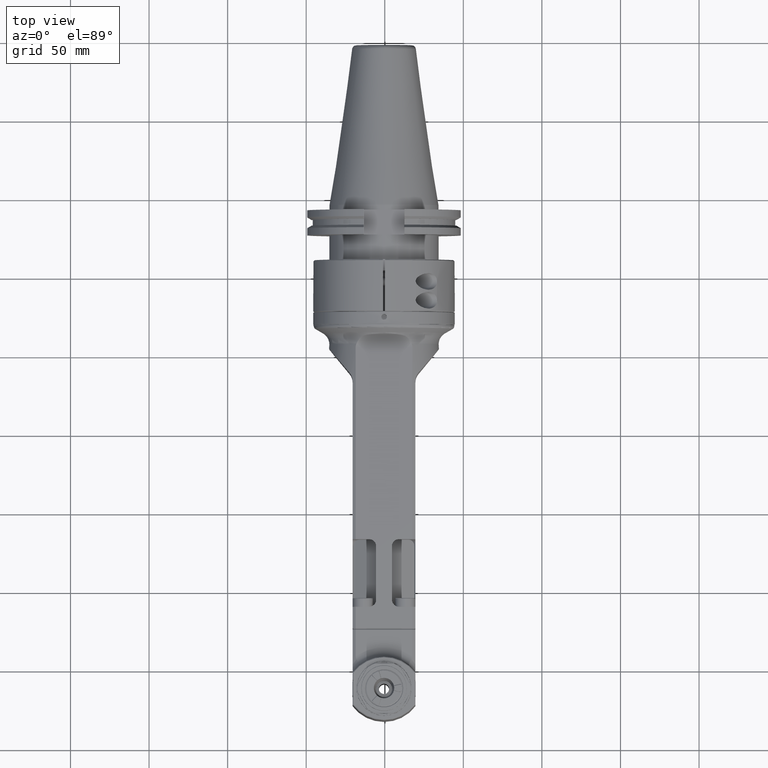
[diagram: clean part render]
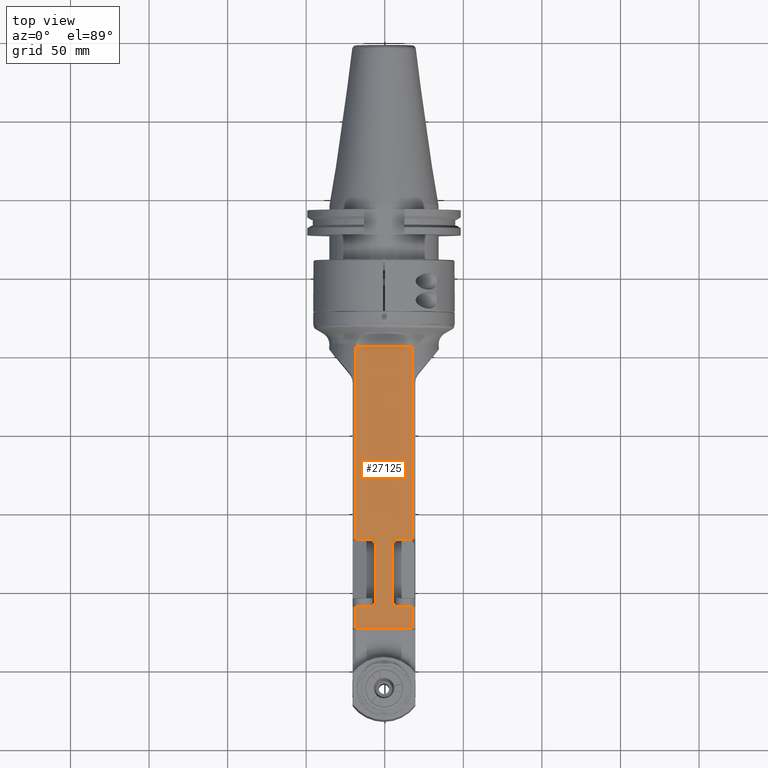
[diagram: same view with one face highlighted and labeled with its STEP entity id]
A machine part, top view. The second image highlights one B-rep face of the part: STEP entity #27125.
In plain terms, the highlighted planar face has unit normal (-0, 0, -1).
Its self-contained STEP definition (entity closure, byte-faithful):
#596=ELLIPSE('',#29265,4.61304858991232,4.);
#597=ELLIPSE('',#29267,4.61304858991232,4.);
#598=ELLIPSE('',#29268,4.61304858991232,4.);
#599=ELLIPSE('',#29269,4.61304858991232,4.);
#2744=FACE_OUTER_BOUND('',#4363,.T.);
#4363=EDGE_LOOP('',(#20313,#20314,#20315,#20316,#20317,#20318,#20319,#20320,
#20321,#20322,#20323,#20324,#20325,#20326,#20327,#20328));
#6253=LINE('',#43466,#8888);
#6254=LINE('',#43502,#8889);
#6261=LINE('',#43658,#8896);
#6268=LINE('',#43685,#8903);
#6269=LINE('',#43687,#8904);
#6270=LINE('',#43689,#8905);
#6271=LINE('',#43693,#8906);
#6272=LINE('',#43697,#8907);
#6273=LINE('',#43698,#8908);
#6274=LINE('',#43700,#8909);
#6275=LINE('',#43704,#8910);
#6276=LINE('',#43705,#8911);
#8888=VECTOR('',#33673,36.05551275464);
#8889=VECTOR('',#33678,122.4387861803);
#8896=VECTOR('',#33691,8.289917782736);
#8903=VECTOR('',#33718,36.05551196458);
#8904=VECTOR('',#33719,13.5000014978301);
#8905=VECTOR('',#33720,8.289917782736);
#8906=VECTOR('',#33723,35.);
#8907=VECTOR('',#33726,8.289917782736);
#8908=VECTOR('',#33727,122.4387861803);
#8909=VECTOR('',#33728,35.);
#8910=VECTOR('',#33731,8.289917782736);
#8911=VECTOR('',#33732,13.5000013643601);
#11676=VERTEX_POINT('',#43433);
#11677=VERTEX_POINT('',#43465);
#11678=VERTEX_POINT('',#43499);
#11690=VERTEX_POINT('',#43656);
#11698=VERTEX_POINT('',#43679);
#11699=VERTEX_POINT('',#43683);
#11700=VERTEX_POINT('',#43684);
#11701=VERTEX_POINT('',#43686);
#11702=VERTEX_POINT('',#43688);
#11703=VERTEX_POINT('',#43690);
#11704=VERTEX_POINT('',#43692);
#11705=VERTEX_POINT('',#43694);
#11706=VERTEX_POINT('',#43696);
#11707=VERTEX_POINT('',#43699);
#11708=VERTEX_POINT('',#43701);
#11709=VERTEX_POINT('',#43703);
#14822=EDGE_CURVE('',#11677,#11676,#6253,.T.);
#14825=EDGE_CURVE('',#11676,#11678,#6254,.T.);
#14837=EDGE_CURVE('',#11678,#11690,#6261,.T.);
#14849=EDGE_CURVE('',#11690,#11698,#596,.T.);
#14850=EDGE_CURVE('',#11699,#11700,#6268,.T.);
#14851=EDGE_CURVE('',#11701,#11699,#6269,.T.);
#14852=EDGE_CURVE('',#11701,#11702,#6270,.T.);
#14853=EDGE_CURVE('',#11702,#11703,#597,.T.);
#14854=EDGE_CURVE('',#11704,#11703,#6271,.T.);
#14855=EDGE_CURVE('',#11704,#11705,#598,.T.);
#14856=EDGE_CURVE('',#11706,#11705,#6272,.T.);
#14857=EDGE_CURVE('',#11677,#11706,#6273,.T.);
#14858=EDGE_CURVE('',#11698,#11707,#6274,.T.);
#14859=EDGE_CURVE('',#11707,#11708,#599,.T.);
#14860=EDGE_CURVE('',#11709,#11708,#6275,.T.);
#14861=EDGE_CURVE('',#11709,#11700,#6276,.T.);
#20313=ORIENTED_EDGE('',*,*,#14850,.F.);
#20314=ORIENTED_EDGE('',*,*,#14851,.F.);
#20315=ORIENTED_EDGE('',*,*,#14852,.T.);
#20316=ORIENTED_EDGE('',*,*,#14853,.T.);
#20317=ORIENTED_EDGE('',*,*,#14854,.F.);
#20318=ORIENTED_EDGE('',*,*,#14855,.T.);
#20319=ORIENTED_EDGE('',*,*,#14856,.F.);
#20320=ORIENTED_EDGE('',*,*,#14857,.F.);
#20321=ORIENTED_EDGE('',*,*,#14822,.T.);
#20322=ORIENTED_EDGE('',*,*,#14825,.T.);
#20323=ORIENTED_EDGE('',*,*,#14837,.T.);
#20324=ORIENTED_EDGE('',*,*,#14849,.T.);
#20325=ORIENTED_EDGE('',*,*,#14858,.T.);
#20326=ORIENTED_EDGE('',*,*,#14859,.T.);
#20327=ORIENTED_EDGE('',*,*,#14860,.F.);
#20328=ORIENTED_EDGE('',*,*,#14861,.T.);
#25919=PLANE('',#29266);
#27125=ADVANCED_FACE('',(#2744),#25919,.F.);
#29265=AXIS2_PLACEMENT_3D('',#43681,#33714,#33715);
#29266=AXIS2_PLACEMENT_3D('',#43682,#33716,#33717);
#29267=AXIS2_PLACEMENT_3D('',#43691,#33721,#33722);
#29268=AXIS2_PLACEMENT_3D('',#43695,#33724,#33725);
#29269=AXIS2_PLACEMENT_3D('',#43702,#33729,#33730);
#33673=DIRECTION('',(0.,0.,1.));
#33678=DIRECTION('',(0.,1.,0.));
#33691=DIRECTION('',(0.,0.,-1.));
#33714=DIRECTION('center_axis',(1.,0.,0.));
#33715=DIRECTION('ref_axis',(0.,0.,-1.));
#33716=DIRECTION('center_axis',(1.,0.,0.));
#33717=DIRECTION('ref_axis',(0.,1.,0.));
#33718=DIRECTION('',(-3.704707661104E-9,-3.7017696564E-9,1.));
#33719=DIRECTION('',(1.11038195773499E-7,0.999999999999993,3.06258335467098E-8));
#33720=DIRECTION('',(0.,0.,1.));
#33721=DIRECTION('center_axis',(1.,0.,0.));
#33722=DIRECTION('ref_axis',(0.,0.,1.));
#33723=DIRECTION('',(0.,1.,0.));
#33724=DIRECTION('center_axis',(1.,0.,0.));
#33725=DIRECTION('ref_axis',(0.,0.,1.));
#33726=DIRECTION('',(0.,0.,1.));
#33727=DIRECTION('',(0.,1.,0.));
#33728=DIRECTION('',(0.,1.,0.));
#33729=DIRECTION('center_axis',(1.,0.,0.));
#33730=DIRECTION('ref_axis',(0.,0.,-1.));
#33731=DIRECTION('',(0.,0.,-1.));
#33732=DIRECTION('',(1.01143743956599E-7,0.999999999999994,-2.78968373765498E-8));
#43433=CARTESIAN_POINT('',(-30.,47.56121381967,18.02775637732));
#43465=CARTESIAN_POINT('',(-30.,47.56121381967,-18.02775637732));
#43466=CARTESIAN_POINT('',(-30.,47.56121381967,-18.02775637732));
#43499=CARTESIAN_POINT('',(-30.,170.,18.02775637732));
#43502=CARTESIAN_POINT('',(-30.,47.56121381967,18.02775637732));
#43656=CARTESIAN_POINT('',(-30.,170.,9.737838594584));
#43658=CARTESIAN_POINT('',(-30.,170.,18.02775637732));
#43679=CARTESIAN_POINT('',(-30.,174.,5.124790004671));
#43681=CARTESIAN_POINT('Origin',(-30.,174.,9.73783859456445));
#43682=CARTESIAN_POINT('Origin',(-30.,47.56121381967,-40.));
#43683=CARTESIAN_POINT('',(-29.9999990029648,226.50000056493,-18.0277562949953));
#43684=CARTESIAN_POINT('',(-29.999999156789,226.500000568999,18.0277561941719));
#43685=CARTESIAN_POINT('',(-29.99999850098,226.5000014978,-18.02775596387));
#43686=CARTESIAN_POINT('',(-30.,213.,-18.02775637732));
#43687=CARTESIAN_POINT('',(-30.,213.,-18.02775637732));
#43688=CARTESIAN_POINT('',(-30.,213.,-9.737838594584));
#43689=CARTESIAN_POINT('',(-30.,213.,-18.02775637732));
#43690=CARTESIAN_POINT('',(-30.,209.,-5.124790004671));
#43691=CARTESIAN_POINT('Origin',(-30.,209.,-9.73783859456445));
#43692=CARTESIAN_POINT('',(-30.,174.,-5.124790004671));
#43693=CARTESIAN_POINT('',(-30.,174.,-5.124790004671));
#43694=CARTESIAN_POINT('',(-30.,170.,-9.737838594584));
#43695=CARTESIAN_POINT('Origin',(-30.,174.,-9.73783859461633));
#43696=CARTESIAN_POINT('',(-30.,170.,-18.02775637732));
#43697=CARTESIAN_POINT('',(-30.,170.,-18.02775637732));
#43698=CARTESIAN_POINT('',(-30.,47.56121381967,-18.02775637732));
#43699=CARTESIAN_POINT('',(-30.,209.,5.124790004671));
#43700=CARTESIAN_POINT('',(-30.,174.,5.124790004671));
#43701=CARTESIAN_POINT('',(-30.,213.,9.737838594584));
#43702=CARTESIAN_POINT('Origin',(-30.,209.,9.73783859461633));
#43703=CARTESIAN_POINT('',(-30.,213.,18.02775637732));
#43704=CARTESIAN_POINT('',(-30.,213.,18.02775637732));
#43705=CARTESIAN_POINT('',(-30.,213.,18.02775637732));